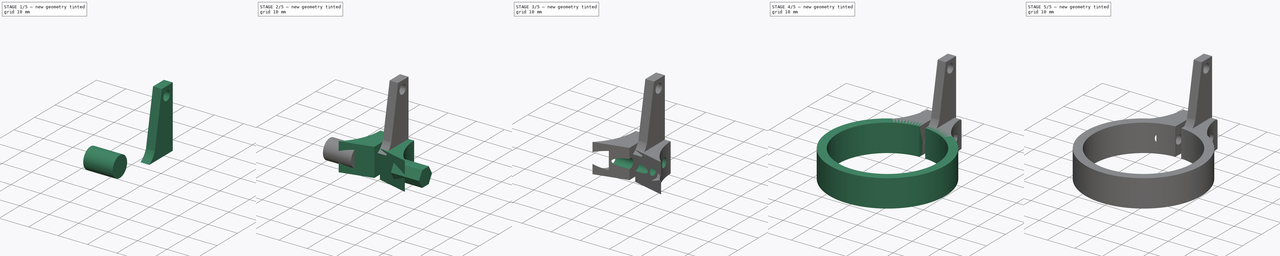
[diagram: build sequence overview — one tinted view per stage of 5, left to right]
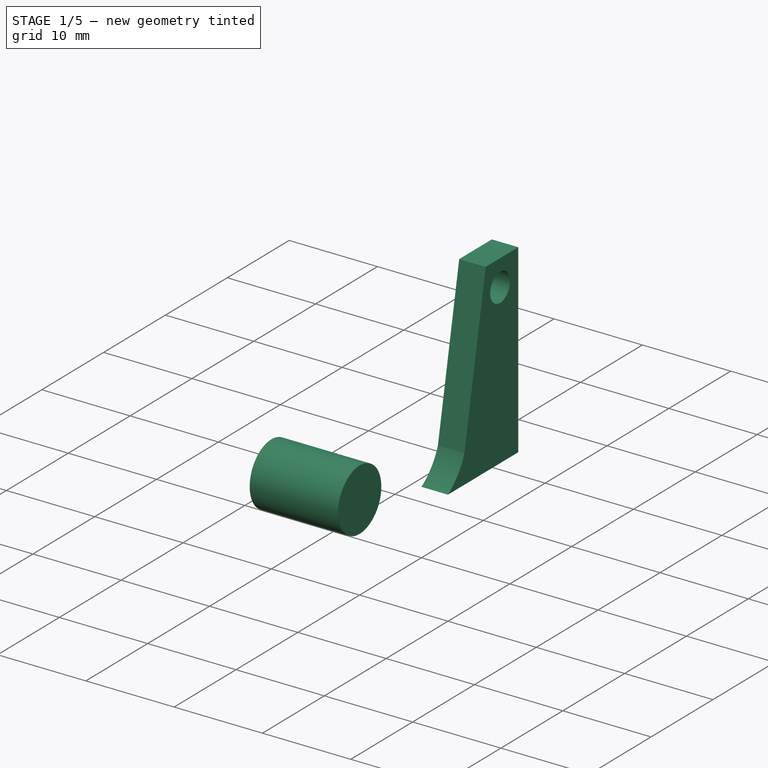
[diagram: stage 1 of 5 — iso view after this stage's code; geometry added in this stage tinted green]
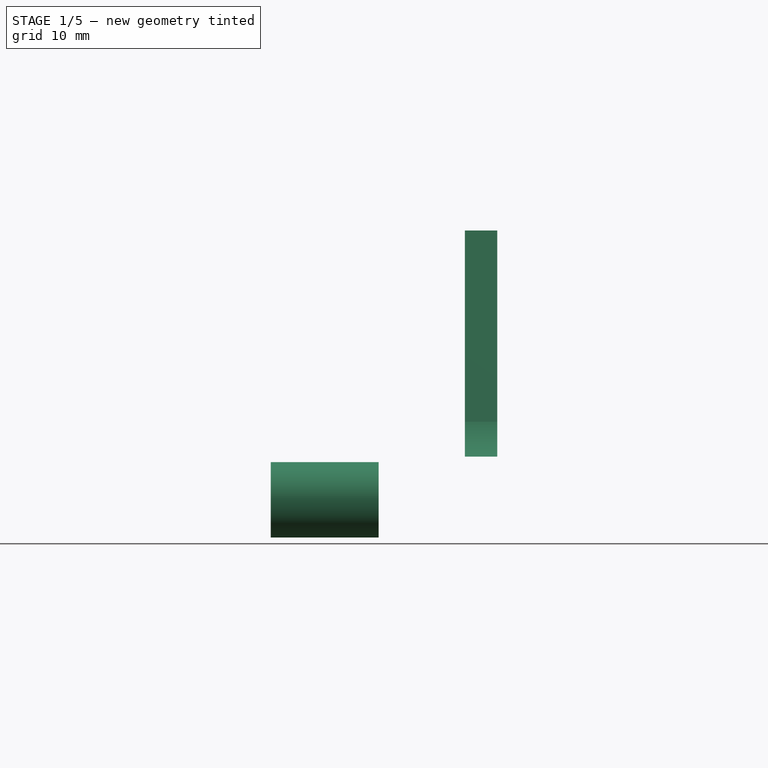
[diagram: stage 1 of 5 — front view after this stage's code; geometry added in this stage tinted green]
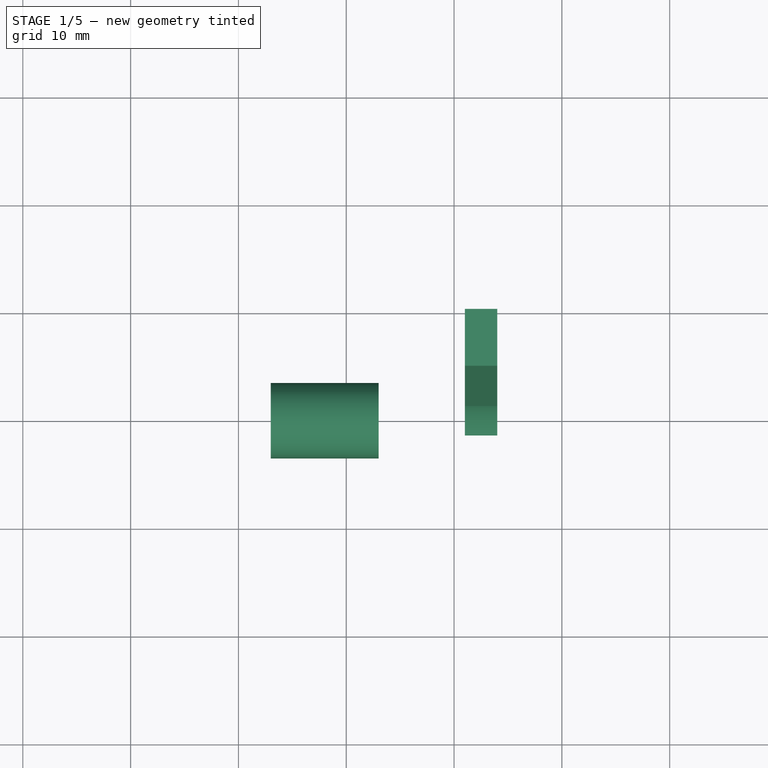
[diagram: stage 1 of 5 — top view after this stage's code; geometry added in this stage tinted green]
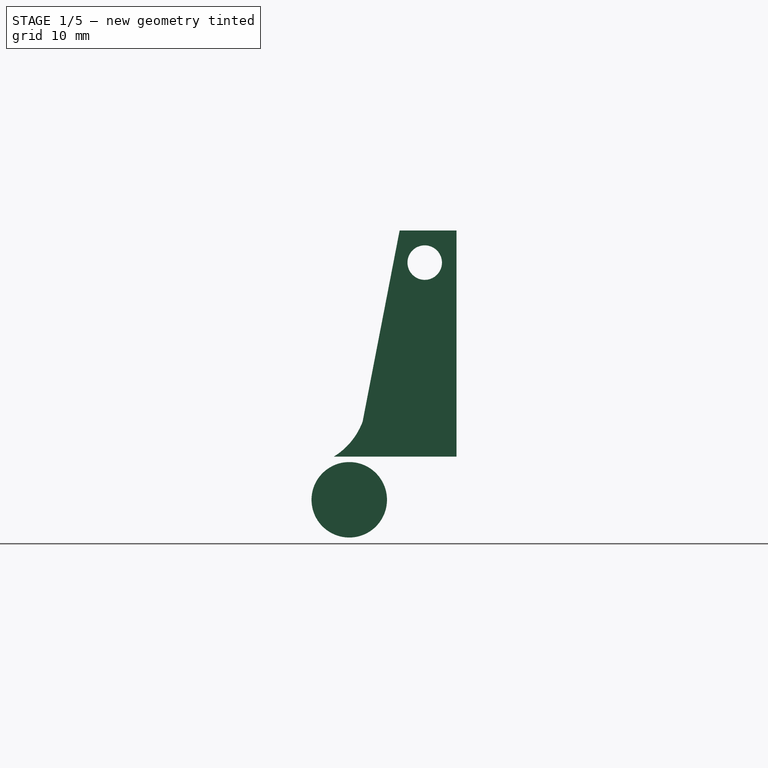
[diagram: stage 1 of 5 — right view after this stage's code; geometry added in this stage tinted green]
FCSTD DOCUMENT  (FreeCAD 0.17R13541 (Git))
Label: kossel_obejma_silnika
License: All rights reserved
LicenseURL: http://en.wikipedia.org/wiki/All_rights_reserved
objects: Part::Cut×9, Sketcher::SketchObject×7, Part::Part2DObjectPython×7, Part::Extrusion×7, Part::FeaturePython×3, Part::MultiFuse×3, Part::Thickness×1, Part::Mirroring×1, Part::Fillet×1
note: 39 computed .brp shape members not serialized (recipe doc carries the construction recipe); baked Part::Feature solids carry a one-line shape summary decoded from their .brp

FEATURE [Sketcher::SketchObject] Sketch003
  Placement = pos=(-15,0,0) rot=(0.57735,0.57735,0.57735;2.0944rad)
  sketch-geometry (1):
    g0: Circle CenterX=20 CenterY=5 CenterZ=0 NormalX=0 NormalY=0 NormalZ=1 AngleXU=0 Radius=1.6
  constraints (3):
    c: Radius(g0) = 1.6
    c: DistanceY(g-1,g0) = 5
    c: DistanceX(g-1,g0) = 20
FEATURE [Part::Part2DObjectPython] DWire003  # Draft 2D object (typed FeaturePython)
  Base = -> Sketch003
  ChamferSize = 0
  Closed = true
  End = (0,0,0)
  FilletRadius = 0
  Length = 0
  MakeFace = true
  Points = (1) [(30,23.6,5)]
  Start = (0,0,0)
  Subdivisions = 0
FEATURE [Part::Extrusion] Extrude003  label="otwor sruby"
  Base = -> DWire003
  Dir = (1,0,0)
  DirMode = 0
  FaceMakerClass = Part::FaceMakerBullseye
  LengthFwd = 30
  LengthRev = 0
  Solid = true
  Symmetric = false
FEATURE [Sketcher::SketchObject] Sketch005
  Placement = pos=(-7,0,0) rot=(0.57735,0.57735,0.57735;2.0944rad)
  sketch-geometry (1):
    g0: Circle CenterX=20 CenterY=5 CenterZ=0 NormalX=0 NormalY=0 NormalZ=1 AngleXU=0 Radius=3.5
  constraints (3):
    c: DistanceX(g0) = 20
    c: DistanceY(g0) = 5
    c: Radius(g0) = 3.5
FEATURE [Part::Part2DObjectPython] DWire005  # Draft 2D object (typed FeaturePython)
  Base = -> Sketch005
  ChamferSize = 0
  Closed = true
  End = (0,0,0)
  FilletRadius = 0
  Length = 0
  MakeFace = true
  Points = (1) [(40,23.5,5)]
  Start = (0,0,0)
  Subdivisions = 0
FEATURE [Part::Extrusion] Extrude005
  Base = -> DWire005
  Dir = (1,0,0)
  DirMode = 0
  FaceMakerClass = Part::FaceMakerBullseye
  LengthFwd = 10
  LengthRev = 0
  Reversed = true
  Solid = true
  Symmetric = false
FEATURE [Sketcher::SketchObject] Sketch006
  Placement = pos=(1,0,0) rot=(0.57735,0.57735,0.57735;2.0944rad)
  sketch-geometry (5):
    g0: LineSegment StartX=18.5638 StartY=9 StartZ=0 EndX=29.9463 EndY=9 EndZ=0
    g1: LineSegment StartX=29.9463 StartY=9 StartZ=0 EndX=29.9463 EndY=29.9792 EndZ=0
    g2: LineSegment StartX=29.9463 StartY=29.9792 StartZ=0 EndX=24.6721 EndY=29.9792 EndZ=0
    g3: ArcOfCircle CenterX=15.1566 CenterY=14.537 CenterZ=0 NormalX=0 NormalY=0 NormalZ=1 AngleXU=0 Radius=6.50134 StartAngle=5.26403 EndAngle=5.92171
    g4: LineSegment StartX=24.6721 StartY=29.9792 StartZ=0 EndX=21.2378 EndY=12.2377 EndZ=0
  constraints (9):
    c: Horizontal(g0)
    c: Coincident(g0,g1)
    c: Coincident(g1,g2)
    c: Horizontal(g2)
    c: Vertical(g1)
    c: Coincident(g3,g0)
    c: Coincident(g2,g4)
    c: Coincident(g4,g3)
    c: DistanceY(g0) = 9
FEATURE [Part::Part2DObjectPython] DWire006  # Draft 2D object (typed FeaturePython)
  Base = -> Sketch006
  ChamferSize = 0
  Closed = true
  End = (40,21.2378,12.2377)
  FilletRadius = 0
  Length = 59.906
  MakeFace = true
  Points = (5) [(40,18.5638,9),(40,29.9463,9),(40,29.9463,29.9792),(40,24.6721,29.9792),(40,21.2378,12.2377)]
  Start = (40,18.5638,9)
  Subdivisions = 0
FEATURE [Part::Extrusion] Extrude006
  Base = -> DWire006
  Dir = (1,0,0)
  DirMode = 0
  FaceMakerClass = Part::FaceMakerBullseye
  LengthFwd = 3
  LengthRev = 0
  Solid = true
  Symmetric = false
FEATURE [Part::FeaturePython] Clone002  label="otwor sruby001"  # Draft clone (typed FeaturePython)
  AttacherType = Attacher::AttachEngine3D
  Fuse = false
  Objects = -> [Extrude003]
  Placement = pos=(0,7,22) rot=(0,0,1;0rad)
  Scale = (1,1,1)
FEATURE [Part::Cut] Cut008  label="STABILIZATOR"
  Base = -> Extrude006
  Refine = true
  Tool = -> Clone002
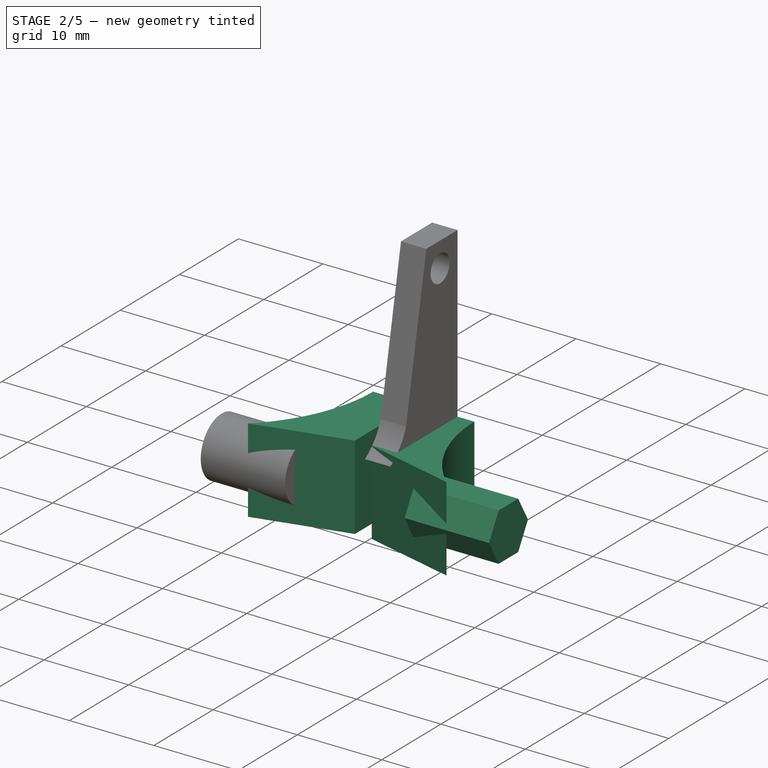
[diagram: stage 2 of 5 — iso view after this stage's code; geometry added in this stage tinted green]
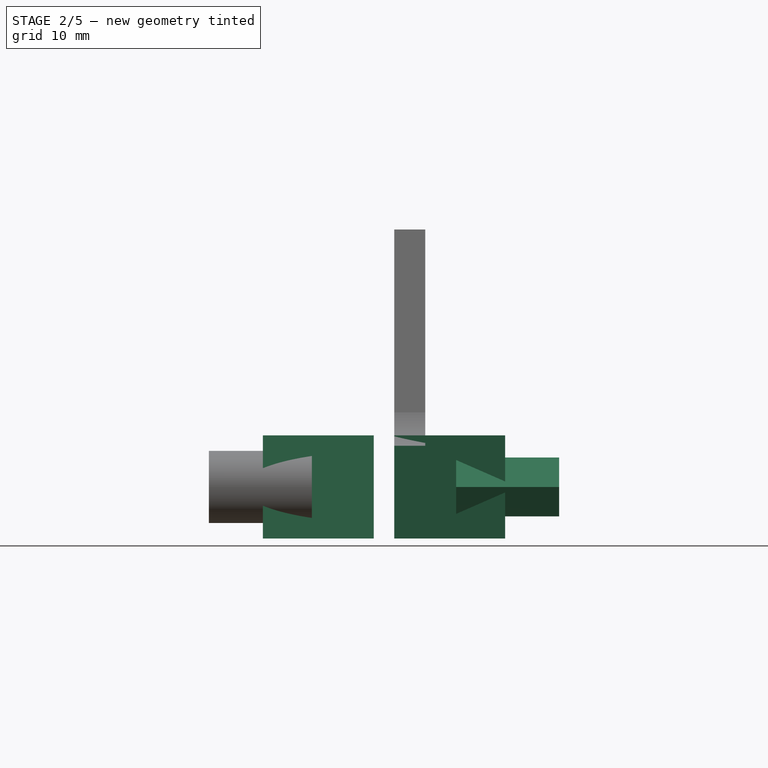
[diagram: stage 2 of 5 — front view after this stage's code; geometry added in this stage tinted green]
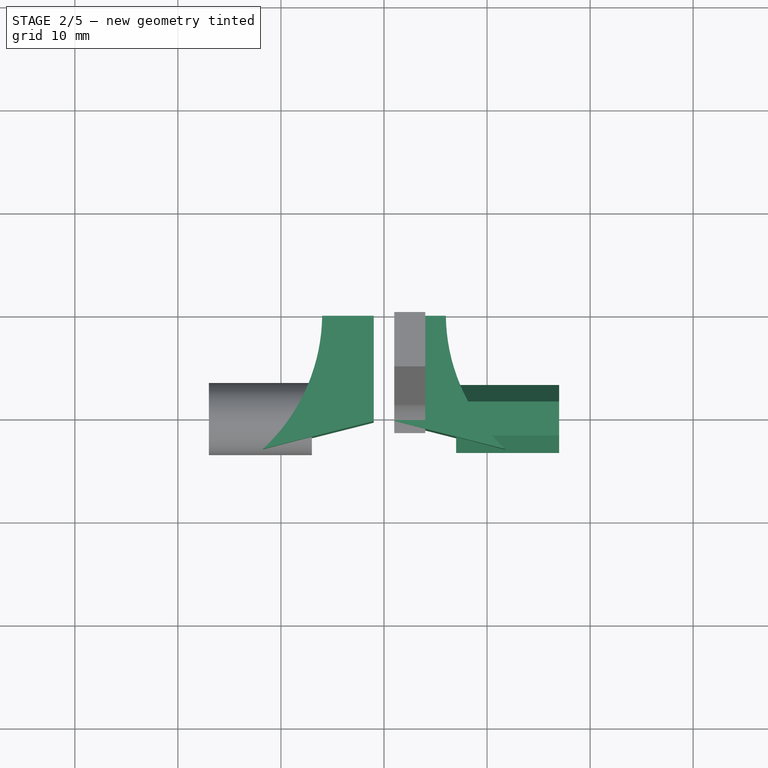
[diagram: stage 2 of 5 — top view after this stage's code; geometry added in this stage tinted green]
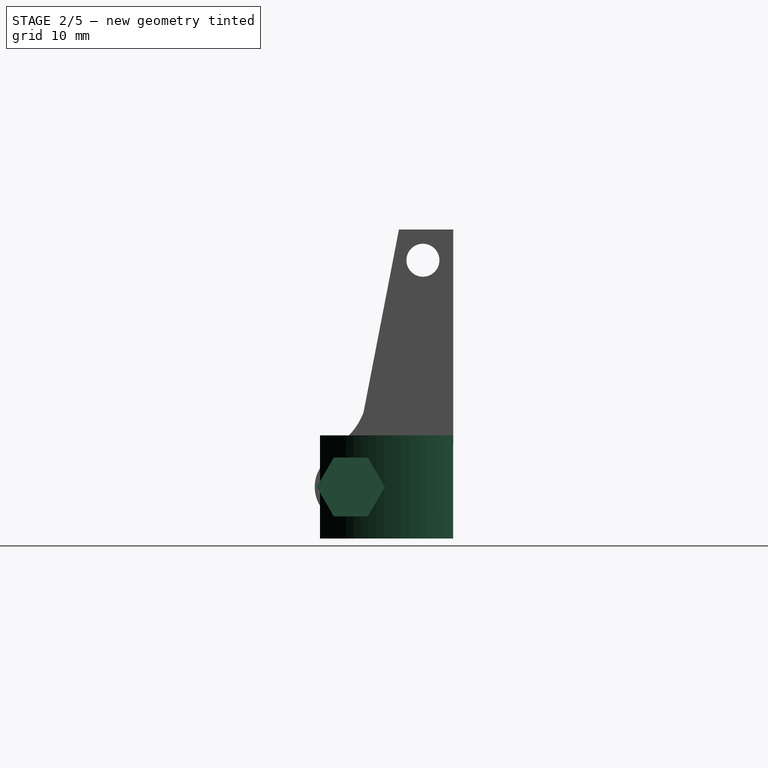
[diagram: stage 2 of 5 — right view after this stage's code; geometry added in this stage tinted green]
FEATURE [Sketcher::SketchObject] Sketch001
  sketch-geometry (4):
    g0: LineSegment StartX=1 StartY=29.9359 StartZ=0 EndX=1 EndY=19.7249 EndZ=0
    g1: LineSegment StartX=1 StartY=19.7249 StartZ=0 EndX=11.7583 EndY=17.0078 EndZ=0
    g2: LineSegment StartX=6 StartY=29.9359 StartZ=0 EndX=1 EndY=29.9359 EndZ=0
    g3: ArcOfCircle CenterX=23.8542 CenterY=30.1419 CenterZ=0 NormalX=0 NormalY=0 NormalZ=1 AngleXU=0 Radius=17.8554 StartAngle=3.15313 EndAngle=3.96812
  constraints (8):
    c: Vertical(g0)
    c: Coincident(g0,g1)
    c: Coincident(g2,g0)
    c: Coincident(g3,g2)
    c: Coincident(g1,g3)
    c: Horizontal(g2)
    c: DistanceX(g2,g2) = 5
    c: DistanceX(g0) = 1
FEATURE [Part::Part2DObjectPython] DWire001  # Draft 2D object (typed FeaturePython)
  Base = -> Sketch001
  ChamferSize = 0
  Closed = true
  End = (5.0825,29.8899,20)
  FilletRadius = 0
  Length = 52.759
  MakeFace = true
  Points = (4) [(1.13006,29.9032,20),(1.13006,19.7249,20),(16.9417,12.3432,20),(5.0825,29.8899,20)]
  Start = (1.13006,29.9032,20)
  Subdivisions = 0
FEATURE [Part::Extrusion] Extrude001
  Base = -> DWire001
  Dir = (0,0,1)
  DirMode = 2
  FaceMakerClass = Part::FaceMakerBullseye
  LengthFwd = 10
  LengthRev = 0
  Solid = false
  Symmetric = false
FEATURE [Part::Mirroring] Part__Mirroring  label="zawieszenie l"
  Base = (0,0,0)
  Normal = (1,0,0)
  Source = -> Extrude001
FEATURE [Part::FeaturePython] Clone001  label="zawieszenie"  # Draft clone (typed FeaturePython)
  AttacherType = Attacher::AttachEngine3D
  Fuse = false
  Objects = -> [Extrude001]
  Scale = (1,1,1)
FEATURE [Part::MultiFuse] Fusion  label="zawieszenie001"
  Shapes = -> [Part__Mirroring,Clone001]
FEATURE [Sketcher::SketchObject] Sketch004
  Placement = pos=(7,0,0) rot=(0.57735,0.57735,0.57735;2.0944rad)
  sketch-geometry (7):
    g0: LineSegment StartX=21.65 StartY=2.14212 StartZ=0 EndX=23.3 EndY=5 EndZ=0
    g1: LineSegment StartX=23.3 StartY=5 StartZ=0 EndX=21.65 EndY=7.85788 EndZ=0
    g2: LineSegment StartX=21.65 StartY=7.85788 StartZ=0 EndX=18.35 EndY=7.85788 EndZ=0
    g3: LineSegment StartX=18.35 StartY=7.85788 StartZ=0 EndX=16.7 EndY=5 EndZ=0
    g4: LineSegment StartX=16.7 StartY=5 StartZ=0 EndX=18.35 EndY=2.14212 EndZ=0
    g5: LineSegment StartX=18.35 StartY=2.14212 StartZ=0 EndX=21.65 EndY=2.14212 EndZ=0
    g6: Circle [constr] CenterX=20 CenterY=5 CenterZ=0 NormalX=0 NormalY=0 NormalZ=1 AngleXU=0 Radius=3.3
  constraints (17):
    c: Coincident(g0,g1)
    c: Coincident(g1,g2)
    c: Coincident(g2,g3)
    c: Coincident(g3,g4)
    c: Coincident(g4,g5)
    c: Coincident(g5,g0)
    c: Equal(g0, g1-g5) x5
    c: PointOnObject(g0,g6)
    c: PointOnObject(g1,g6)
    c: PointOnObject(g2,g6)
    c: PointOnObject(g3,g6)
    c: PointOnObject(g4,g6)
    c: PointOnObject(g5,g6)
    c: Horizontal(g5)
    c: Radius(g6) = 3.3
    c: DistanceY(g6) = 5
    c: DistanceX(g6) = 20
FEATURE [Part::Part2DObjectPython] DWire004  # Draft 2D object (typed FeaturePython)
  Base = -> Sketch004
  ChamferSize = 0
  Closed = true
  End = (30,18.36,2.14212)
  FilletRadius = 0
  Length = 19.8
  MakeFace = true
  Points = (6) [(30,21.66,2.14212),(30,23.31,5),(30,21.66,7.85788),(30,18.36,7.85788),(30,16.71,5),(30,18.36,2.14212)]
  Start = (30,21.66,2.14212)
  Subdivisions = 0
FEATURE [Part::Extrusion] Extrude004  label="nakretka"
  Base = -> DWire004
  Dir = (1,0,0)
  DirMode = 0
  FaceMakerClass = Part::FaceMakerBullseye
  LengthFwd = 10
  LengthRev = 0
  Solid = true
  Symmetric = false
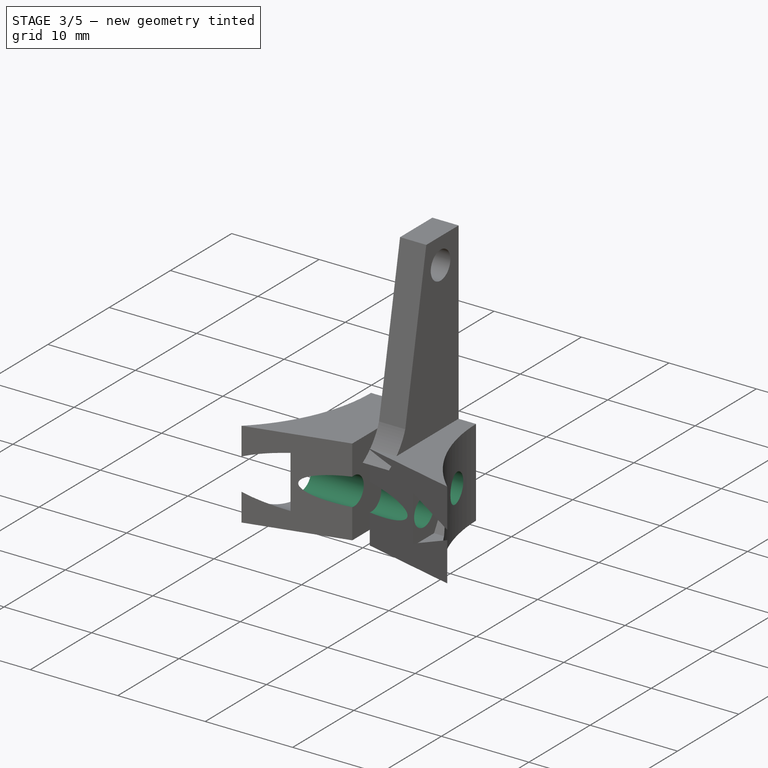
[diagram: stage 3 of 5 — iso view after this stage's code; geometry added in this stage tinted green]
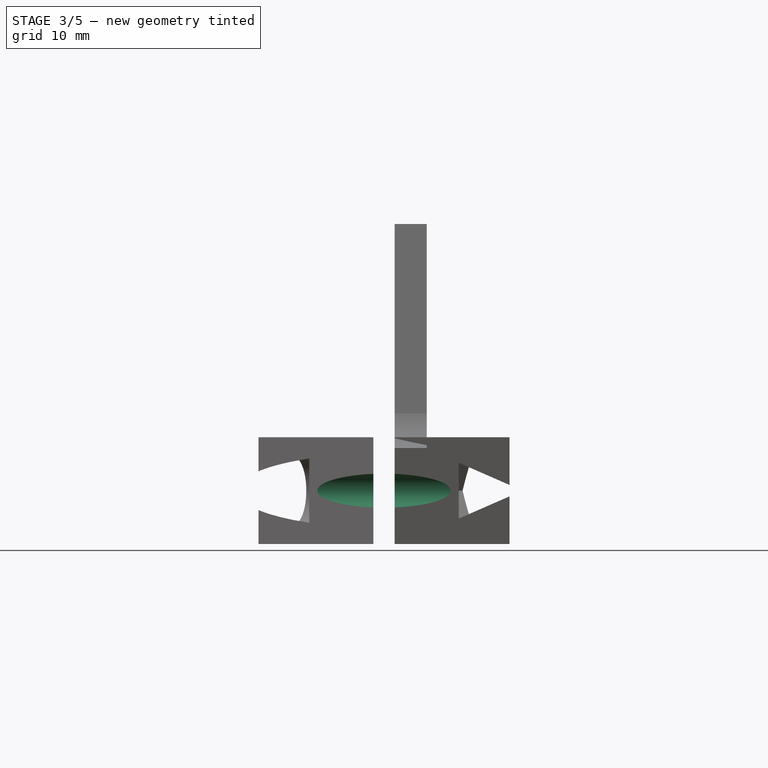
[diagram: stage 3 of 5 — front view after this stage's code; geometry added in this stage tinted green]
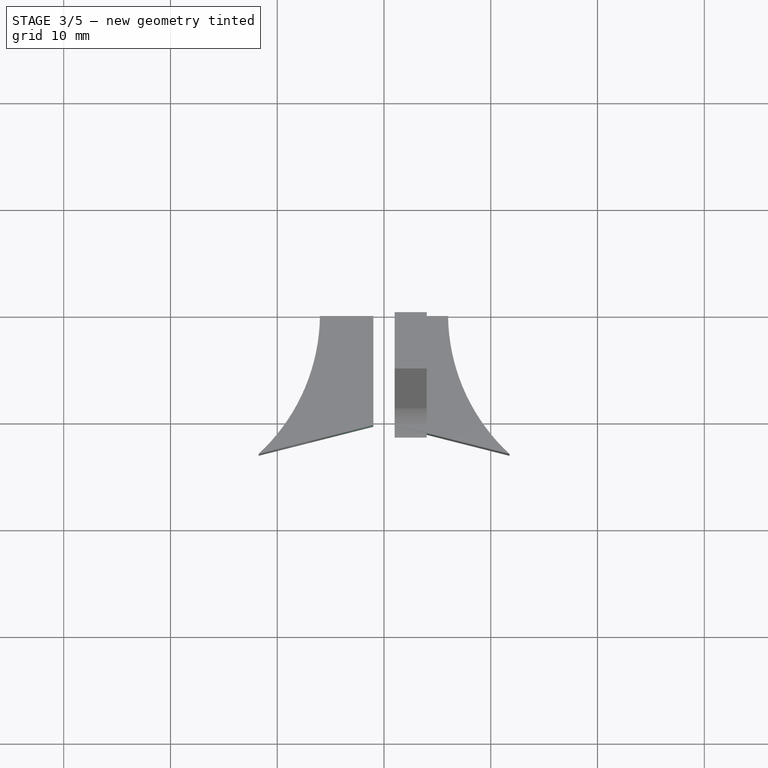
[diagram: stage 3 of 5 — top view after this stage's code; geometry added in this stage tinted green]
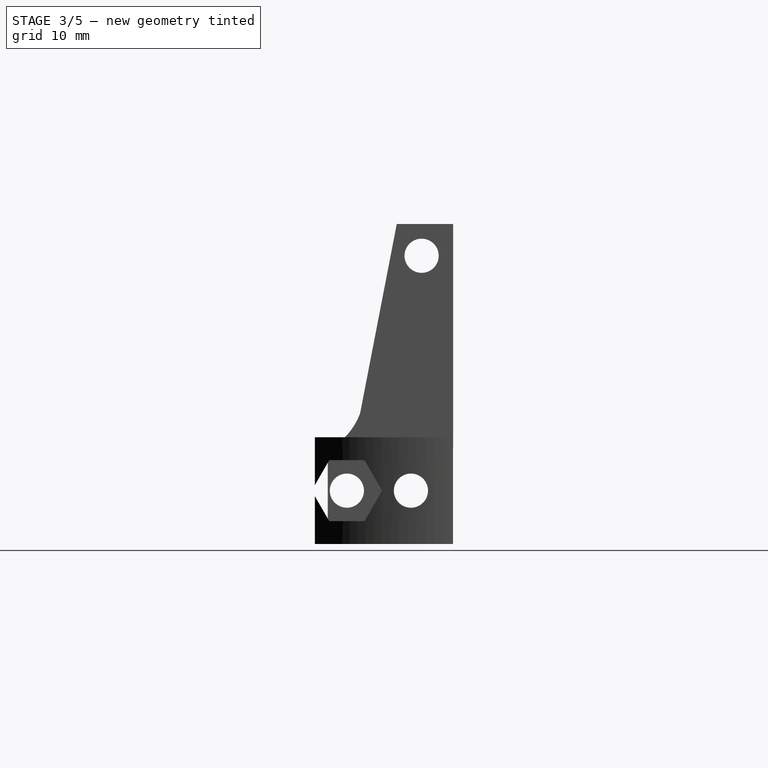
[diagram: stage 3 of 5 — right view after this stage's code; geometry added in this stage tinted green]
FEATURE [Part::FeaturePython] Clone  label="otwor zawieszenia"  # Draft clone (typed FeaturePython)
  AttacherType = Attacher::AttachEngine3D
  Fuse = false
  Objects = -> [Extrude003]
  Placement = pos=(0,6,0) rot=(0,0,1;0rad)
  Scale = (1,1,1)
FEATURE [Part::Cut] Cut001  label="zawieszenie otwor"
  Base = -> Fusion
  Tool = -> Clone
FEATURE [Part::Cut] Cut002  label="zawieszenie otwor sruby"
  Base = -> Cut001
  Tool = -> Extrude003
FEATURE [Part::Cut] Cut005
  Base = -> Cut002
  Tool = -> Extrude004
FEATURE [Part::Cut] Cut006
  Base = -> Cut005
  Tool = -> Extrude005
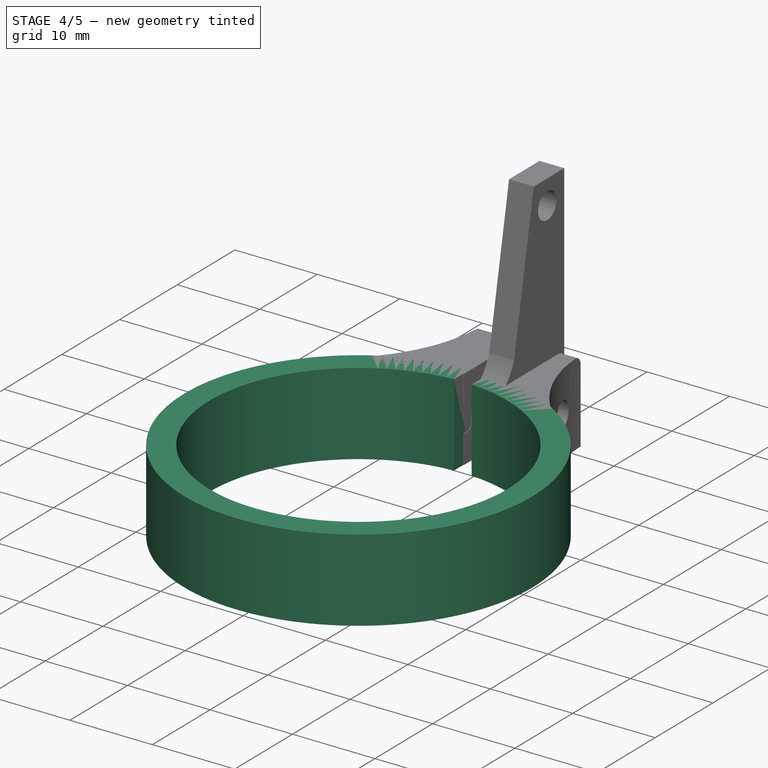
[diagram: stage 4 of 5 — iso view after this stage's code; geometry added in this stage tinted green]
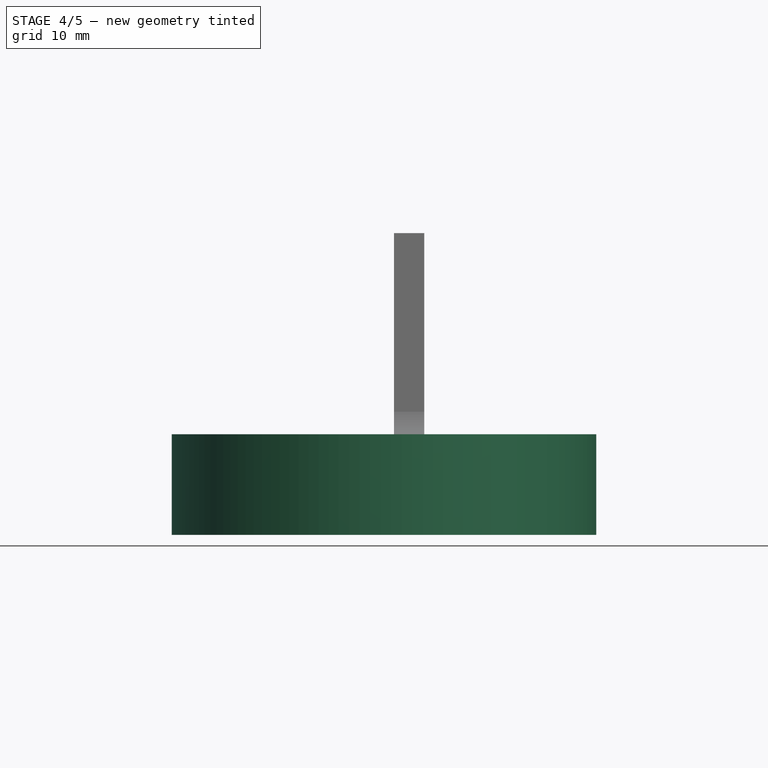
[diagram: stage 4 of 5 — front view after this stage's code; geometry added in this stage tinted green]
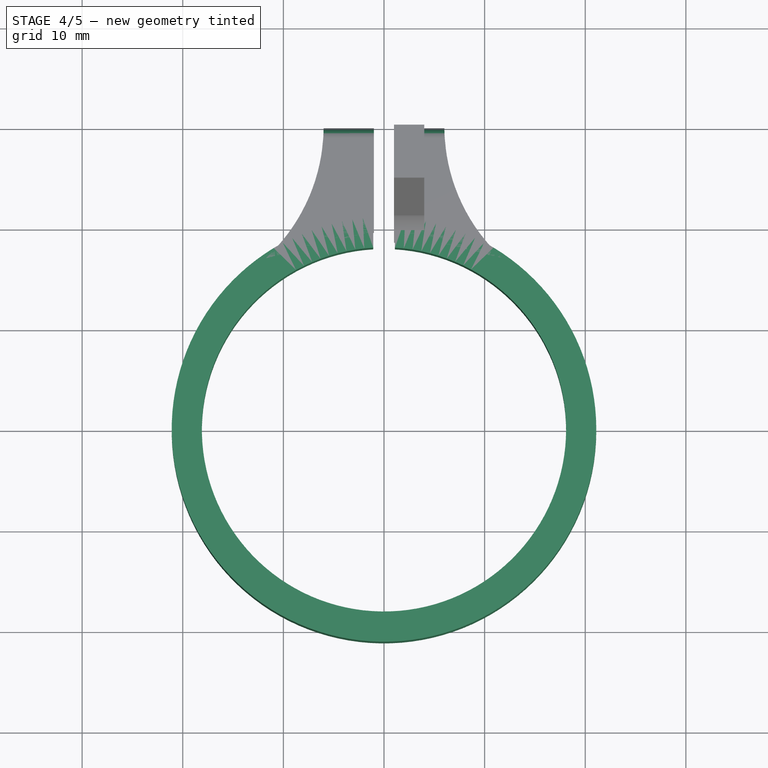
[diagram: stage 4 of 5 — top view after this stage's code; geometry added in this stage tinted green]
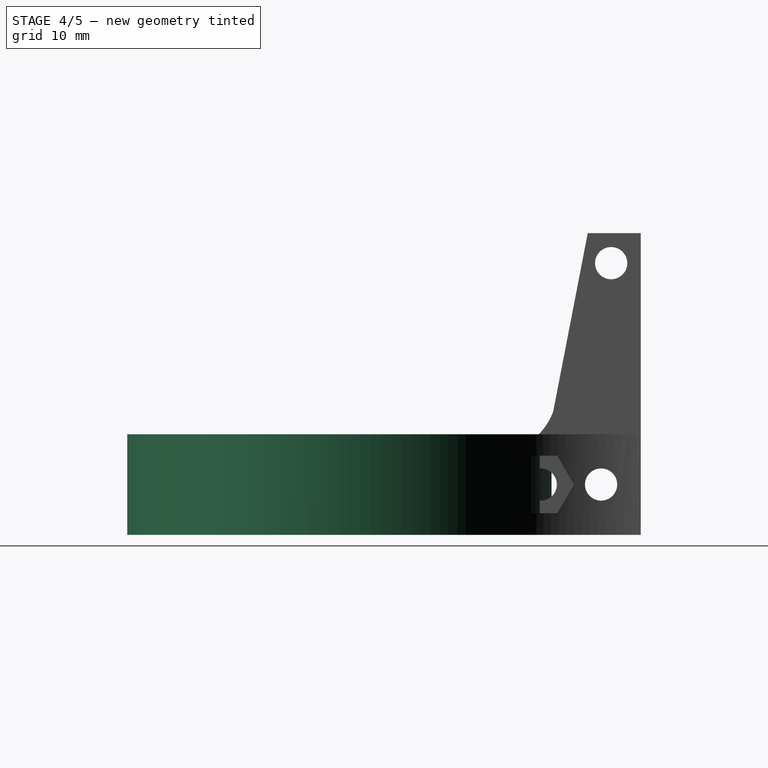
[diagram: stage 4 of 5 — right view after this stage's code; geometry added in this stage tinted green]
FEATURE [Sketcher::SketchObject] Sketch
  sketch-geometry (1):
    g0: Circle CenterX=0 CenterY=0 CenterZ=0 NormalX=0 NormalY=0 NormalZ=1 AngleXU=0 Radius=18.1
  constraints (2):
    c: Coincident(g0,g-1)
    c: Radius(g0) = 18.1
FEATURE [Part::Part2DObjectPython] DWire  # Draft 2D object (typed FeaturePython)
  Base = -> Sketch
  ChamferSize = 0
  Closed = true
  End = (0,0,0)
  FilletRadius = 0
  Length = 0
  MakeFace = true
  Points = (1) [(18.1,0,0)]
  Start = (0,0,0)
  Subdivisions = 0
FEATURE [Part::Extrusion] Extrude
  Base = -> DWire
  Dir = (0,0,1)
  DirMode = 2
  FaceMakerClass = Part::FaceMakerBullseye
  LengthFwd = 10
  LengthRev = 0
  Solid = true
  Symmetric = false
FEATURE [Part::Thickness] Thickness
  Faces = -> Extrude [Face3,Face2]
  Intersection = false
  Join = 0
  Mode = 0
  SelfIntersection = false
  Value = 3
FEATURE [Sketcher::SketchObject] Sketch002
  Placement = pos=(0,0,-5) rot=(0,0,1;0rad)
  sketch-geometry (4):
    g0: LineSegment StartX=-1.06404 StartY=21.2507 StartZ=0 EndX=1.08639 EndY=21.2507 EndZ=0
    g1: LineSegment StartX=1.08639 StartY=21.2507 StartZ=0 EndX=1.08639 EndY=17.5695 EndZ=0
    g2: LineSegment StartX=1.08639 StartY=17.5695 StartZ=0 EndX=-1.06404 EndY=17.5695 EndZ=0
    g3: LineSegment StartX=-1.06404 StartY=17.5695 StartZ=0 EndX=-1.06404 EndY=21.2507 EndZ=0
  constraints (8):
    c: Coincident(g0,g1)
    c: Coincident(g1,g2)
    c: Coincident(g2,g3)
    c: Coincident(g3,g0)
    c: Horizontal(g0)
    c: Horizontal(g2)
    c: Vertical(g1)
    c: Vertical(g3)
FEATURE [Part::Part2DObjectPython] DWire002  # Draft 2D object (typed FeaturePython)
  Base = -> Sketch002
  ChamferSize = 0
  Closed = true
  End = (-1.06404,17.5695,0)
  FilletRadius = 0
  Length = 11.6634
  MakeFace = true
  Points = (4) [(-1.06404,21.2507,0),(1.08639,21.2507,0),(1.08639,17.5695,0),(-1.06404,17.5695,0)]
  Start = (-1.06404,21.2507,0)
  Subdivisions = 0
FEATURE [Part::Extrusion] Extrude002
  Base = -> DWire002
  Dir = (0,0,1)
  DirMode = 2
  FaceMakerClass = Part::FaceMakerBullseye
  LengthFwd = 20
  LengthRev = 0
  Solid = true
  Symmetric = false
FEATURE [Part::Cut] Cut
  Base = -> Thickness
  Refine = true
  Tool = -> Extrude002
FEATURE [Part::Fillet] Fillet
  Base = -> Cut006
  Edges = 2 edges r=1: [Edge22,Edge52]
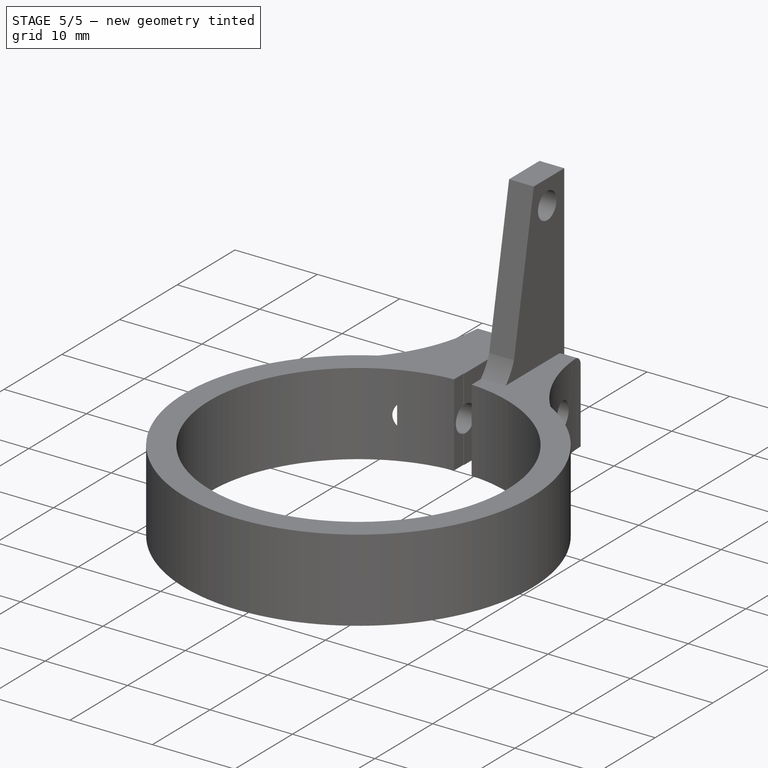
[diagram: stage 5 of 5 — iso view after this stage's code; geometry added in this stage tinted green]
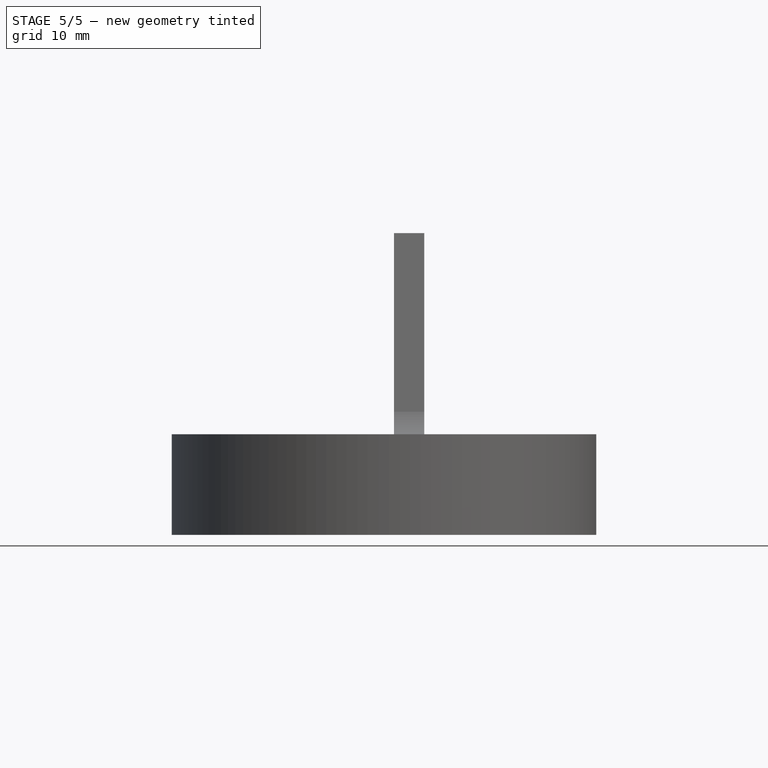
[diagram: stage 5 of 5 — front view after this stage's code; geometry added in this stage tinted green]
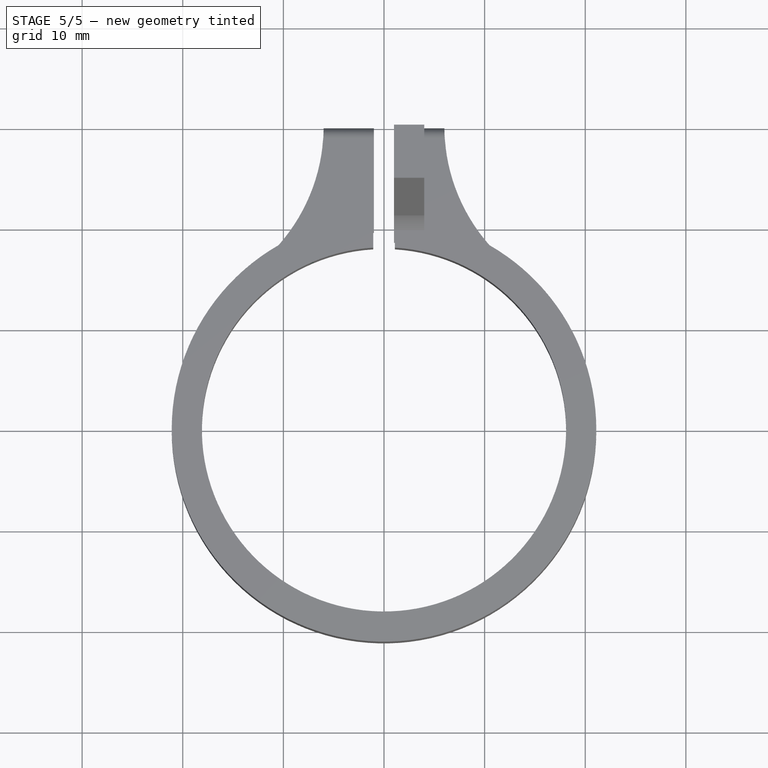
[diagram: stage 5 of 5 — top view after this stage's code; geometry added in this stage tinted green]
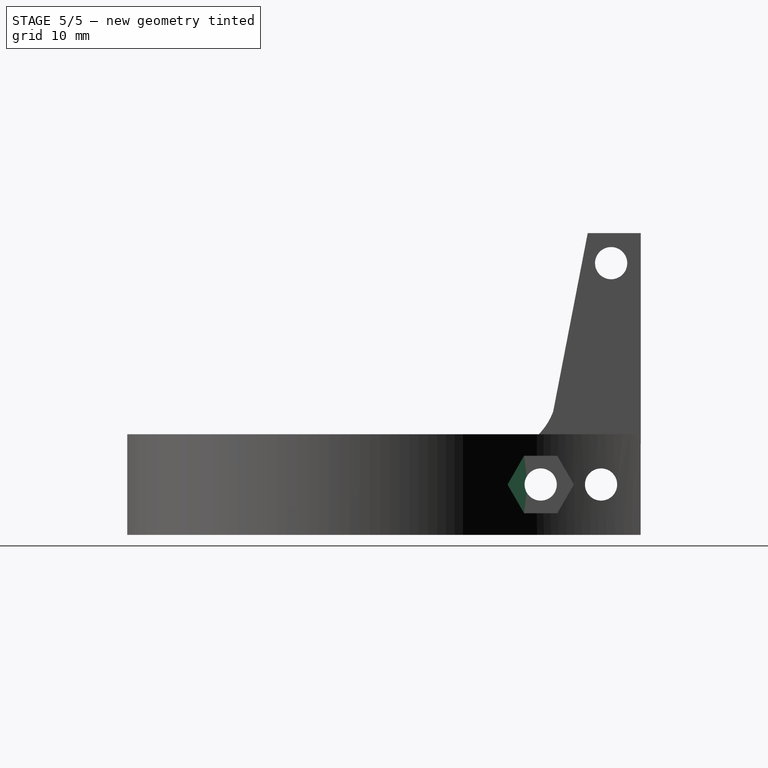
[diagram: stage 5 of 5 — right view after this stage's code; geometry added in this stage tinted green]
FEATURE [Part::Cut] Cut003
  Base = -> Cut
  Refine = true
  Tool = -> Extrude003
FEATURE [Part::Cut] Cut004
  Base = -> Cut003
  Refine = true
  Tool = -> Extrude004
FEATURE [Part::Cut] Cut007
  Base = -> Cut004
  Refine = true
  Tool = -> Extrude005
FEATURE [Part::MultiFuse] Fusion001  label="OBEJMA SILNIKA"
  Refine = true
  Shapes = -> [Fillet,Cut007]
FEATURE [Part::MultiFuse] Fusion002  label="OBEJMA ZE STAB"
  Refine = true
  Shapes = -> [Cut008,Fusion001]
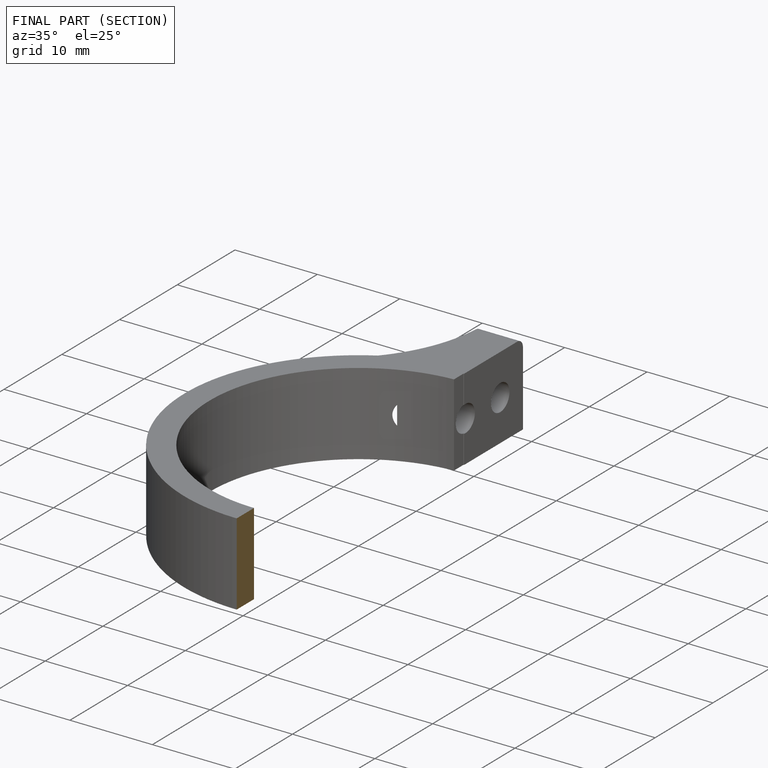
[diagram: finished part — half-section view (interior)]
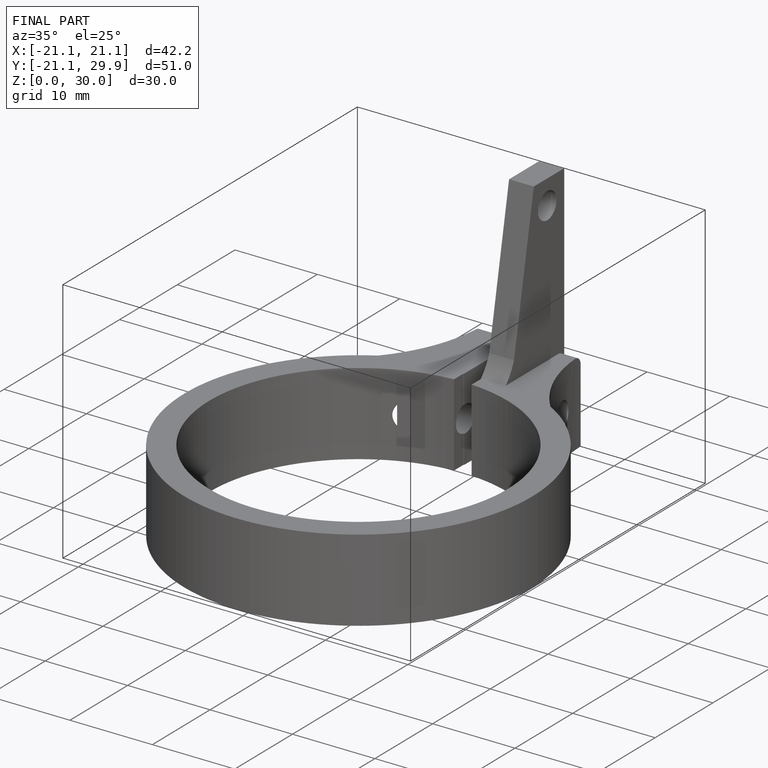
[diagram: finished part — iso view with bounding-box wireframe]
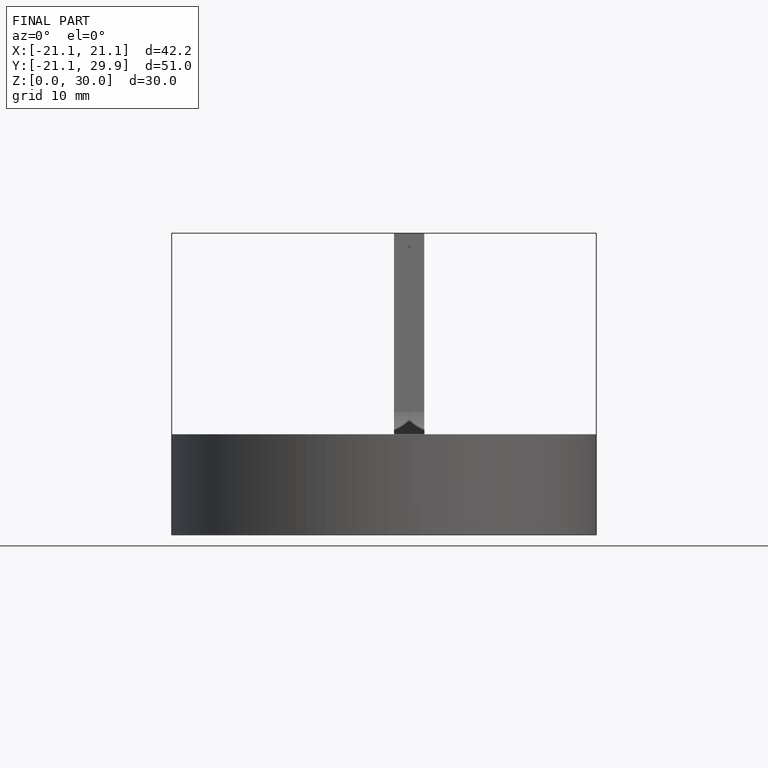
[diagram: finished part — front view with bounding-box wireframe]
